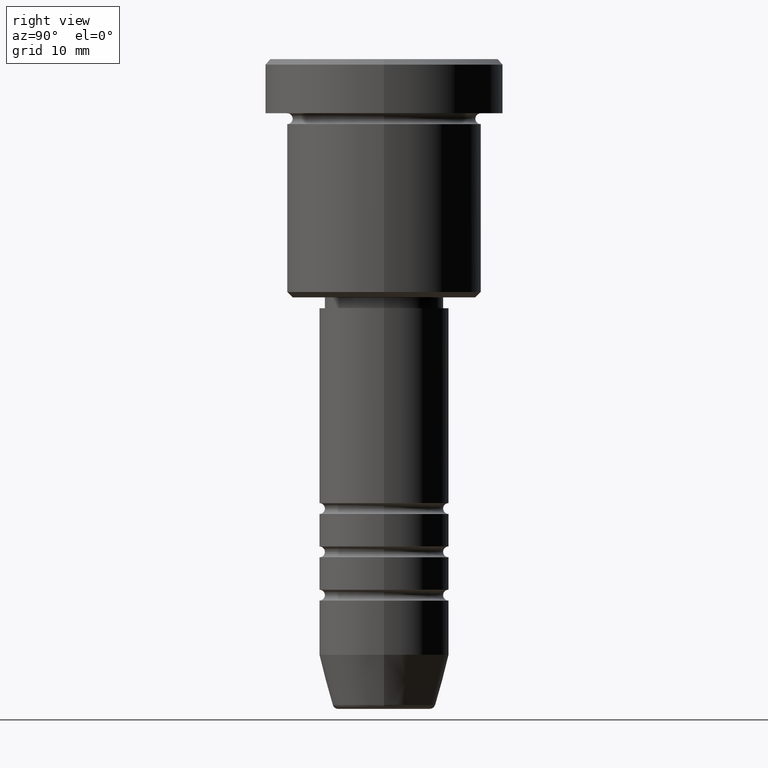
[diagram: clean part render]
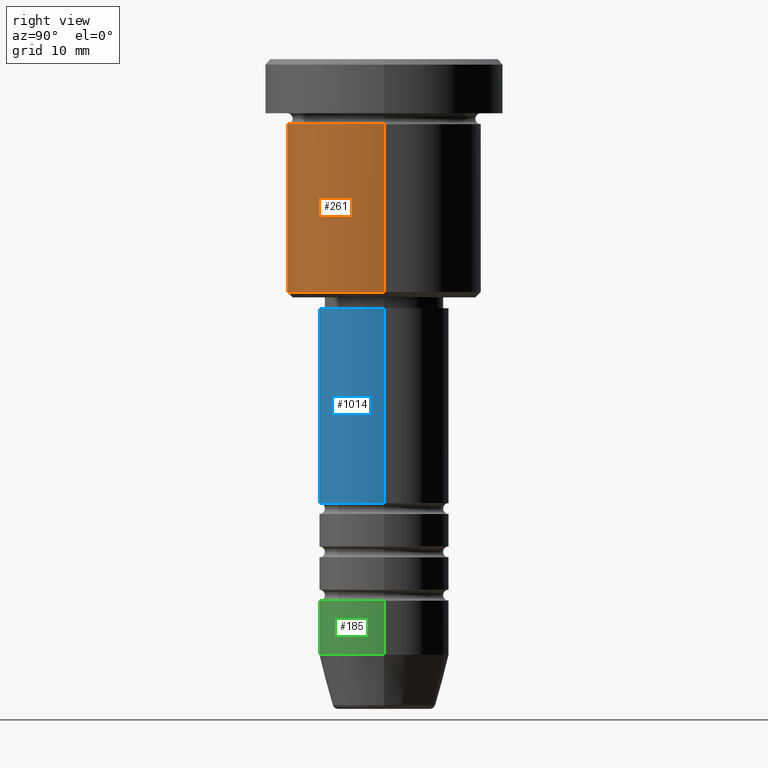
[diagram: same view with three faces highlighted in distinct colors, each labeled with its STEP entity id]
A machine part, right view with three faces highlighted in distinct colors.
Their STEP definitions:

[orange] entity #261 — the highlighted cylindrical surface (partial cylindrical patch) has radius 9 mm, axis along (-0, -0, 1).
#12 = CYLINDRICAL_SURFACE ( 'NONE', #1145, 9.000000000000000000 ) ;
#15 = VERTEX_POINT ( 'NONE', #569 ) ;
#29 = CARTESIAN_POINT ( 'NONE',  ( -9.000000000000000000, 1.102182119232617714E-15, -21.50000000000001066 ) ) ;
#72 = EDGE_CURVE ( 'NONE', #526, #94, #721, .T. ) ;
#94 = VERTEX_POINT ( 'NONE', #264 ) ;
#105 = DIRECTION ( 'NONE',  ( 1.000000000000000000, 0.000000000000000000, 0.000000000000000000 ) ) ;
#149 = CARTESIAN_POINT ( 'NONE',  ( -9.000000000000000000, 1.102182119232617714E-15, 0.000000000000000000 ) ) ;
#157 = CARTESIAN_POINT ( 'NONE',  ( 9.000000000000000000, 0.000000000000000000, 0.000000000000000000 ) ) ;
#177 = FACE_OUTER_BOUND ( 'NONE', #385, .T. ) ;
#261 = ADVANCED_FACE ( 'NONE', ( #177 ), #12, .T. ) ;
#264 = CARTESIAN_POINT ( 'NONE',  ( 9.000000000000000000, 0.000000000000000000, -6.000000000000000000 ) ) ;
#292 = DIRECTION ( 'NONE',  ( 1.000000000000000000, 0.000000000000000000, 0.000000000000000000 ) ) ;
#326 = LINE ( 'NONE', #149, #557 ) ;
#361 = ORIENTED_EDGE ( 'NONE', *, *, #776, .F. ) ;
#364 = CARTESIAN_POINT ( 'NONE',  ( 0.000000000000000000, 0.000000000000000000, -21.50000000000001066 ) ) ;
#385 = EDGE_LOOP ( 'NONE', ( #361, #866, #479, #504 ) ) ;
#436 = CARTESIAN_POINT ( 'NONE',  ( -9.000000000000000000, 1.102182119232617714E-15, -6.000000000000000000 ) ) ;
#469 = EDGE_CURVE ( 'NONE', #15, #94, #972, .T. ) ;
#479 = ORIENTED_EDGE ( 'NONE', *, *, #469, .T. ) ;
#504 = ORIENTED_EDGE ( 'NONE', *, *, #72, .F. ) ;
#510 = DIRECTION ( 'NONE',  ( -0.000000000000000000, -0.000000000000000000, 1.000000000000000000 ) ) ;
#526 = VERTEX_POINT ( 'NONE', #436 ) ;
#557 = VECTOR ( 'NONE', #785, 1000.000000000000000 ) ;
#563 = DIRECTION ( 'NONE',  ( -1.000000000000000000, 0.000000000000000000, 0.000000000000000000 ) ) ;
#569 = CARTESIAN_POINT ( 'NONE',  ( 9.000000000000000000, 0.000000000000000000, -21.50000000000001066 ) ) ;
#694 = VECTOR ( 'NONE', #510, 1000.000000000000000 ) ;
#721 = CIRCLE ( 'NONE', #992, 9.000000000000000000 ) ;
#740 = DIRECTION ( 'NONE',  ( -0.000000000000000000, -0.000000000000000000, 1.000000000000000000 ) ) ;
#761 = CARTESIAN_POINT ( 'NONE',  ( 0.000000000000000000, 0.000000000000000000, -6.000000000000000000 ) ) ;
#776 = EDGE_CURVE ( 'NONE', #997, #526, #326, .T. ) ;
#785 = DIRECTION ( 'NONE',  ( -0.000000000000000000, -0.000000000000000000, 1.000000000000000000 ) ) ;
#810 = AXIS2_PLACEMENT_3D ( 'NONE', #364, #913, #563 ) ;
#845 = EDGE_CURVE ( 'NONE', #997, #15, #1036, .T. ) ;
#866 = ORIENTED_EDGE ( 'NONE', *, *, #845, .T. ) ;
#911 = CARTESIAN_POINT ( 'NONE',  ( 0.000000000000000000, 0.000000000000000000, 0.000000000000000000 ) ) ;
#913 = DIRECTION ( 'NONE',  ( -0.000000000000000000, -0.000000000000000000, 1.000000000000000000 ) ) ;
#972 = LINE ( 'NONE', #157, #694 ) ;
#992 = AXIS2_PLACEMENT_3D ( 'NONE', #761, #1131, #105 ) ;
#997 = VERTEX_POINT ( 'NONE', #29 ) ;
#1036 = CIRCLE ( 'NONE', #810, 9.000000000000000000 ) ;
#1131 = DIRECTION ( 'NONE',  ( -0.000000000000000000, -0.000000000000000000, 1.000000000000000000 ) ) ;
#1145 = AXIS2_PLACEMENT_3D ( 'NONE', #911, #740, #292 ) ;

[blue] entity #1014 — the highlighted cylindrical surface (partial cylindrical patch) has radius 6 mm, axis along (-0, -0, 1).
#99 = ORIENTED_EDGE ( 'NONE', *, *, #626, .T. ) ;
#102 = DIRECTION ( 'NONE',  ( 1.000000000000000000, 0.000000000000000000, 0.000000000000000000 ) ) ;
#130 = FACE_OUTER_BOUND ( 'NONE', #553, .T. ) ;
#137 = CIRCLE ( 'NONE', #362, 6.000000000000000000 ) ;
#161 = CARTESIAN_POINT ( 'NONE',  ( -6.000000000000000000, 7.347880794884119736E-16, 0.000000000000000000 ) ) ;
#194 = VERTEX_POINT ( 'NONE', #1061 ) ;
#197 = CARTESIAN_POINT ( 'NONE',  ( 6.000000000000000000, 0.000000000000000000, -23.00000000000000000 ) ) ;
#212 = EDGE_CURVE ( 'NONE', #679, #731, #137, .T. ) ;
#216 = DIRECTION ( 'NONE',  ( -0.000000000000000000, -0.000000000000000000, 1.000000000000000000 ) ) ;
#266 = VERTEX_POINT ( 'NONE', #197 ) ;
#362 = AXIS2_PLACEMENT_3D ( 'NONE', #470, #1016, #102 ) ;
#382 = EDGE_CURVE ( 'NONE', #194, #266, #983, .T. ) ;
#425 = CARTESIAN_POINT ( 'NONE',  ( 6.000000000000000000, 0.000000000000000000, -40.99999999999999289 ) ) ;
#426 = LINE ( 'NONE', #161, #1060 ) ;
#458 = EDGE_CURVE ( 'NONE', #679, #194, #426, .T. ) ;
#470 = CARTESIAN_POINT ( 'NONE',  ( 0.000000000000000000, 0.000000000000000000, -40.99999999999999289 ) ) ;
#487 = AXIS2_PLACEMENT_3D ( 'NONE', #771, #216, #681 ) ;
#488 = CARTESIAN_POINT ( 'NONE',  ( 0.000000000000000000, 0.000000000000000000, 0.000000000000000000 ) ) ;
#553 = EDGE_LOOP ( 'NONE', ( #719, #996, #99, #1008 ) ) ;
#577 = AXIS2_PLACEMENT_3D ( 'NONE', #488, #677, #755 ) ;
#593 = DIRECTION ( 'NONE',  ( -0.000000000000000000, -0.000000000000000000, 1.000000000000000000 ) ) ;
#626 = EDGE_CURVE ( 'NONE', #731, #266, #1144, .T. ) ;
#677 = DIRECTION ( 'NONE',  ( -0.000000000000000000, -0.000000000000000000, 1.000000000000000000 ) ) ;
#679 = VERTEX_POINT ( 'NONE', #781 ) ;
#681 = DIRECTION ( 'NONE',  ( 1.000000000000000000, 0.000000000000000000, 0.000000000000000000 ) ) ;
#687 = CARTESIAN_POINT ( 'NONE',  ( 6.000000000000000000, 0.000000000000000000, 0.000000000000000000 ) ) ;
#702 = DIRECTION ( 'NONE',  ( -0.000000000000000000, -0.000000000000000000, 1.000000000000000000 ) ) ;
#719 = ORIENTED_EDGE ( 'NONE', *, *, #458, .F. ) ;
#731 = VERTEX_POINT ( 'NONE', #425 ) ;
#755 = DIRECTION ( 'NONE',  ( 1.000000000000000000, 0.000000000000000000, 0.000000000000000000 ) ) ;
#760 = CYLINDRICAL_SURFACE ( 'NONE', #577, 6.000000000000000000 ) ;
#771 = CARTESIAN_POINT ( 'NONE',  ( 0.000000000000000000, 0.000000000000000000, -23.00000000000000000 ) ) ;
#772 = VECTOR ( 'NONE', #593, 1000.000000000000000 ) ;
#781 = CARTESIAN_POINT ( 'NONE',  ( -6.000000000000000000, 7.347880794884119736E-16, -40.99999999999999289 ) ) ;
#983 = CIRCLE ( 'NONE', #487, 6.000000000000000000 ) ;
#996 = ORIENTED_EDGE ( 'NONE', *, *, #212, .T. ) ;
#1008 = ORIENTED_EDGE ( 'NONE', *, *, #382, .F. ) ;
#1014 = ADVANCED_FACE ( 'NONE', ( #130 ), #760, .T. ) ;
#1016 = DIRECTION ( 'NONE',  ( -0.000000000000000000, -0.000000000000000000, 1.000000000000000000 ) ) ;
#1060 = VECTOR ( 'NONE', #702, 1000.000000000000000 ) ;
#1061 = CARTESIAN_POINT ( 'NONE',  ( -6.000000000000000000, 7.347880794884119736E-16, -23.00000000000000000 ) ) ;
#1144 = LINE ( 'NONE', #687, #772 ) ;

[green] entity #185 — the highlighted cylindrical surface (partial cylindrical patch) has radius 6 mm, axis along (-0, -0, 1).
#54 = DIRECTION ( 'NONE',  ( 1.000000000000000000, 0.000000000000000000, 0.000000000000000000 ) ) ;
#61 = CARTESIAN_POINT ( 'NONE',  ( 0.000000000000000000, 0.000000000000000000, -55.00000000000000000 ) ) ;
#84 = CYLINDRICAL_SURFACE ( 'NONE', #457, 6.000000000000000000 ) ;
#136 = CARTESIAN_POINT ( 'NONE',  ( 5.999999999999999112, 0.000000000000000000, -50.00000000000000000 ) ) ;
#164 = AXIS2_PLACEMENT_3D ( 'NONE', #321, #1143, #54 ) ;
#180 = ORIENTED_EDGE ( 'NONE', *, *, #864, .T. ) ;
#185 = ADVANCED_FACE ( 'NONE', ( #901 ), #84, .T. ) ;
#200 = DIRECTION ( 'NONE',  ( -0.000000000000000000, -0.000000000000000000, 1.000000000000000000 ) ) ;
#226 = DIRECTION ( 'NONE',  ( 1.000000000000000000, 0.000000000000000000, 0.000000000000000000 ) ) ;
#237 = LINE ( 'NONE', #589, #732 ) ;
#270 = ORIENTED_EDGE ( 'NONE', *, *, #765, .T. ) ;
#274 = CARTESIAN_POINT ( 'NONE',  ( -6.000000000000000000, 7.347880794884119736E-16, -55.00000000000000000 ) ) ;
#321 = CARTESIAN_POINT ( 'NONE',  ( 0.000000000000000000, 0.000000000000000000, -50.00000000000000000 ) ) ;
#325 = VERTEX_POINT ( 'NONE', #274 ) ;
#387 = DIRECTION ( 'NONE',  ( -0.000000000000000000, -0.000000000000000000, 1.000000000000000000 ) ) ;
#390 = VERTEX_POINT ( 'NONE', #1128 ) ;
#419 = EDGE_CURVE ( 'NONE', #325, #390, #237, .T. ) ;
#429 = CARTESIAN_POINT ( 'NONE',  ( 6.000000000000000000, 0.000000000000000000, -55.00000000000000000 ) ) ;
#457 = AXIS2_PLACEMENT_3D ( 'NONE', #808, #1035, #226 ) ;
#517 = VECTOR ( 'NONE', #200, 1000.000000000000000 ) ;
#550 = LINE ( 'NONE', #1105, #517 ) ;
#589 = CARTESIAN_POINT ( 'NONE',  ( -6.000000000000000000, 7.347880794884119736E-16, 0.000000000000000000 ) ) ;
#592 = DIRECTION ( 'NONE',  ( -0.000000000000000000, -0.000000000000000000, 1.000000000000000000 ) ) ;
#680 = DIRECTION ( 'NONE',  ( 1.000000000000000000, 0.000000000000000000, 0.000000000000000000 ) ) ;
#732 = VECTOR ( 'NONE', #387, 1000.000000000000000 ) ;
#742 = VERTEX_POINT ( 'NONE', #429 ) ;
#754 = EDGE_CURVE ( 'NONE', #390, #1088, #905, .T. ) ;
#765 = EDGE_CURVE ( 'NONE', #325, #742, #1017, .T. ) ;
#767 = ORIENTED_EDGE ( 'NONE', *, *, #754, .F. ) ;
#769 = AXIS2_PLACEMENT_3D ( 'NONE', #61, #592, #680 ) ;
#808 = CARTESIAN_POINT ( 'NONE',  ( 0.000000000000000000, 0.000000000000000000, 0.000000000000000000 ) ) ;
#864 = EDGE_CURVE ( 'NONE', #742, #1088, #550, .T. ) ;
#899 = ORIENTED_EDGE ( 'NONE', *, *, #419, .F. ) ;
#901 = FACE_OUTER_BOUND ( 'NONE', #909, .T. ) ;
#905 = CIRCLE ( 'NONE', #164, 5.999999999999999112 ) ;
#909 = EDGE_LOOP ( 'NONE', ( #899, #270, #180, #767 ) ) ;
#1017 = CIRCLE ( 'NONE', #769, 6.000000000000000000 ) ;
#1035 = DIRECTION ( 'NONE',  ( -0.000000000000000000, -0.000000000000000000, 1.000000000000000000 ) ) ;
#1088 = VERTEX_POINT ( 'NONE', #136 ) ;
#1105 = CARTESIAN_POINT ( 'NONE',  ( 6.000000000000000000, 0.000000000000000000, 0.000000000000000000 ) ) ;
#1128 = CARTESIAN_POINT ( 'NONE',  ( -5.999999999999999112, 7.347880794884118750E-16, -50.00000000000000000 ) ) ;
#1143 = DIRECTION ( 'NONE',  ( -0.000000000000000000, -0.000000000000000000, 1.000000000000000000 ) ) ;